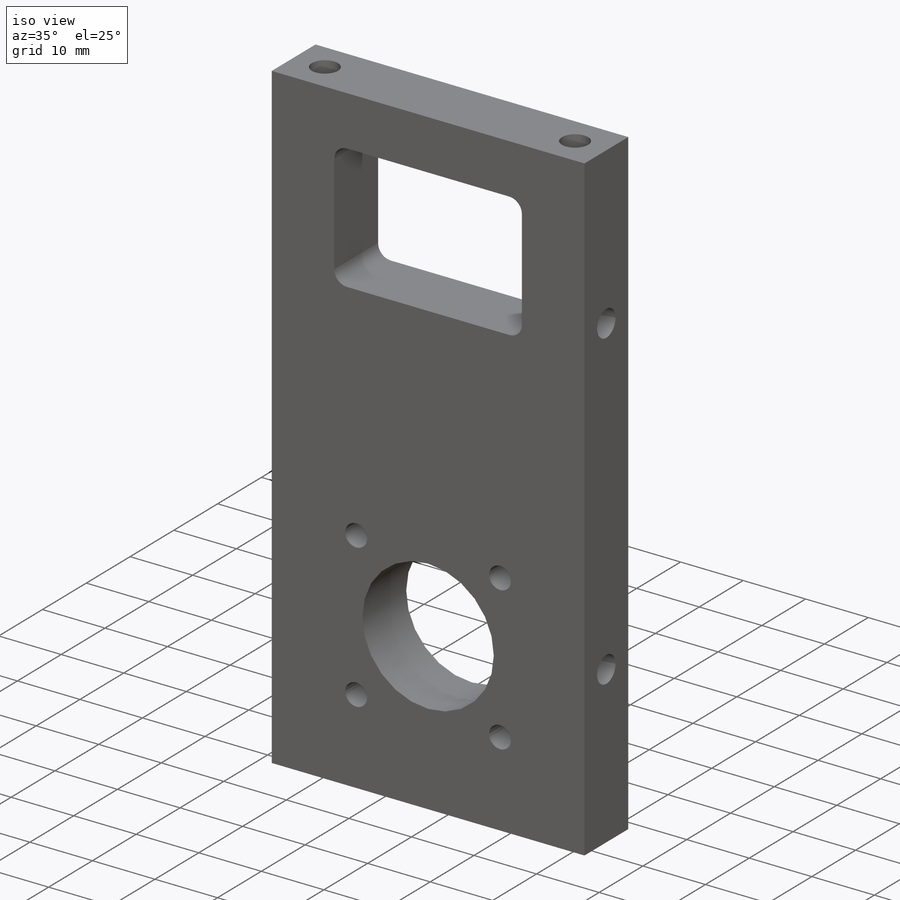
[diagram: iso view]
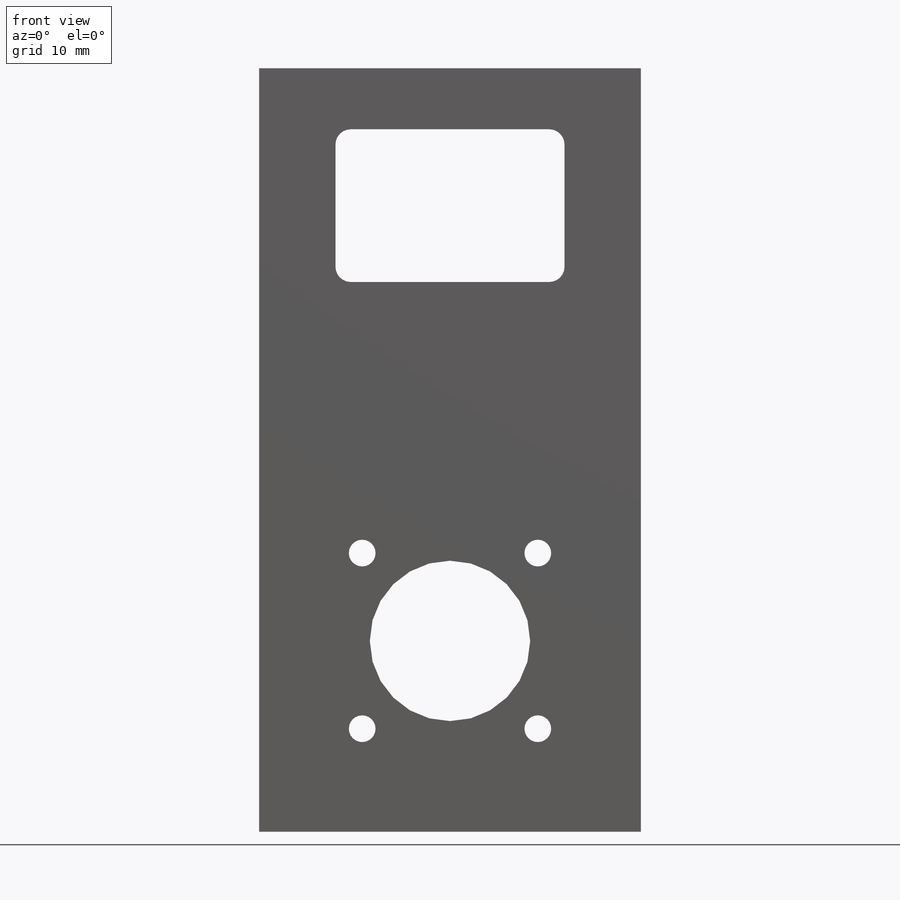
[diagram: front view]
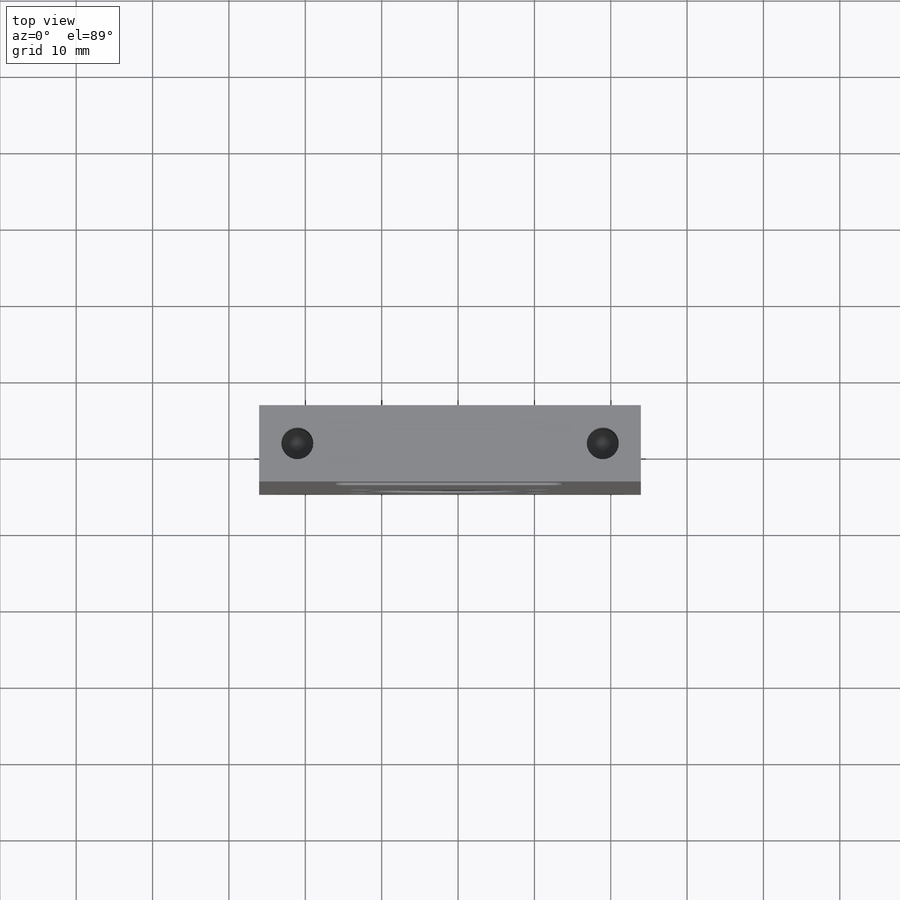
[diagram: top view]
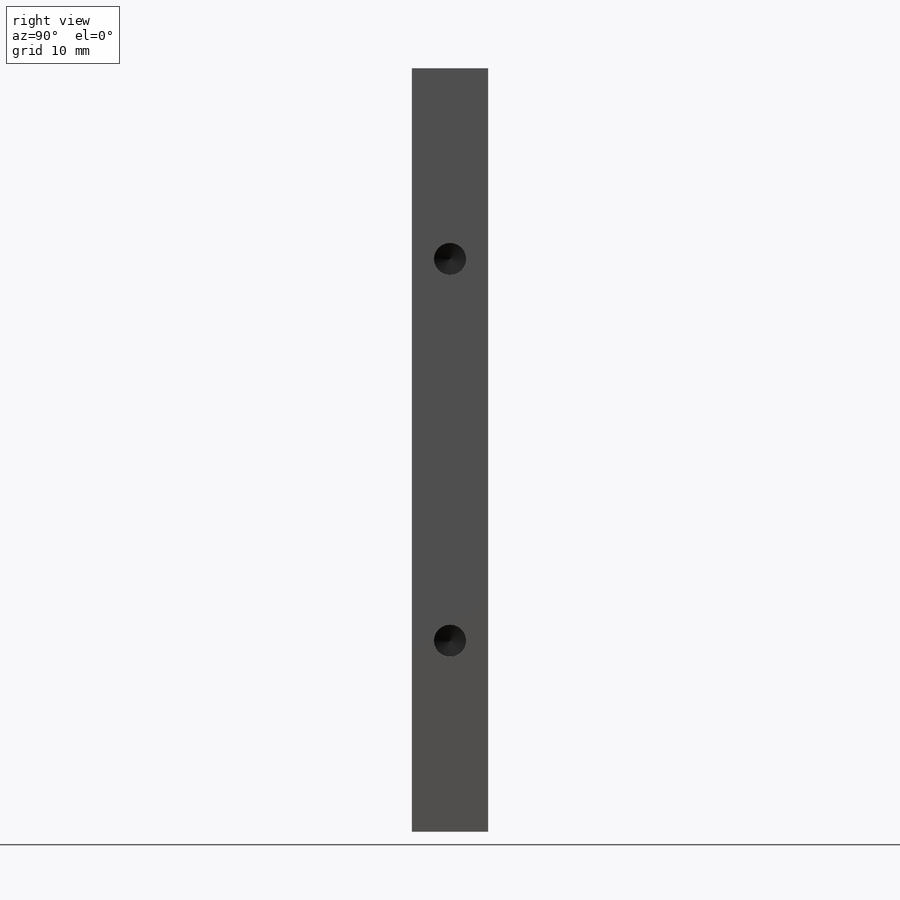
[diagram: right view]
SOLIDWORKS PART (.sldprt)
format: sldprt  version: not decoded by parser v0  size: 334,336 bytes
history: native  units: mm
features: sketch x10, thread x8, hole x4, material x1, extrude x1, cut_extrude x1, fillet x1 (+11 scaffold rows collapsed)
feature tree (37):
  scaffold x11  (default folders/planes/origin — collapsed)
  material  "Material <not specified>"
  sketch  "Sketch1"  dims[D1=50.0mm D2=10.0mm D3=20.0mm]
  extrude  "Boss-Extrude1"  Depth=100mm
  hole  "M5x0.8 Tapped Hole1"  Diameter=4.2mm Depth=14mm
  sketch  "Sketch3"  dims[D1=5.0mm D2=5.0mm D3=5.0mm D4=5.0mm]
  sketch  "Sketch2"  dims[hole-wizard template sketch: 50 standard entries collapsed; hole parameters above]
  thread  "Hole Thread1"  Diameter=10mm  [1 undecoded]
  thread  "Hole Thread2"  Diameter=10mm  [1 undecoded]
  hole  "M5x0.8 Tapped Hole2"  Diameter=4.2mm Depth=14mm
  sketch  "Sketch5"
  sketch  "Sketch4"  dims[hole-wizard template sketch: 50 standard entries collapsed; hole parameters above]
  thread  "Hole Thread3"  Diameter=10mm  [1 undecoded]
  thread  "Hole Thread4"  Diameter=10mm  [1 undecoded]
  hole  "M5x0.8 Tapped Hole3"  Diameter=4.2mm Depth=8mm
  sketch  "Sketch7"  dims[D1=25.0mm D2=5.0mm D3=5.0mm D4=25.0mm D5=~14.516539mm]
  sketch  "Sketch6"  dims[hole-wizard template sketch: 47 standard entries collapsed; hole parameters kept: c15.Tap Drill Depth=8.0mm c15.D3=~14.816244mm c15.Drill Angle=118.0deg]
  thread  "Hole Thread5"  Diameter=5mm  [1 undecoded]
  thread  "Hole Thread6"  Diameter=5mm  [1 undecoded]
  hole  "M5x0.8 Tapped Hole4"  Diameter=4.2mm Depth=8mm
  sketch  "Sketch9"  dims[D1=25.0mm D2=5.0mm D3=5.0mm D4=25.0mm]
  sketch  "Sketch8"  dims[hole-wizard template sketch: 47 standard entries collapsed; hole parameters kept: c15.Tap Drill Depth=8.0mm c15.D3=~14.816244mm c15.Drill Angle=118.0deg]
  thread  "Hole Thread7"  Diameter=5mm  [1 undecoded]
  thread  "Hole Thread8"  Diameter=5mm  [1 undecoded]
  sketch  "Sketch11"  dims[c1.D5=21.0mm c1.D8=3.5mm c1.D9=3.5mm c1.D10=3.5mm c1.D11=3.5mm c1.D1=10.0mm c1.D2=8.0mm c1.D3=20.0mm c1.D4=20.0mm c2.D3=10.0mm c2.D6=25.0mm c2.D7=25.0mm c2.D12=23.0mm c2.D13=23.0mm c2.D14=23.0mm c2.D15=23.0mm c2.D16=11.5mm c2.D17=11.5mm c2.D18=11.5mm c2.D19=11.5mm]
  cut_extrude  "Cut-Extrude2"  [1 undecoded]
  fillet  "Fillet2"  Radius=2mm
decode coverage: 23 of 25 modeling features carry decoded parameters
note: ~ marks probable driven/reference dimensions
note: 9 parameter values undecoded
summary: Diameter pulled from absorbed wizard sketch
note: suppression state not decoded; provenance and decode notes live in map.json
